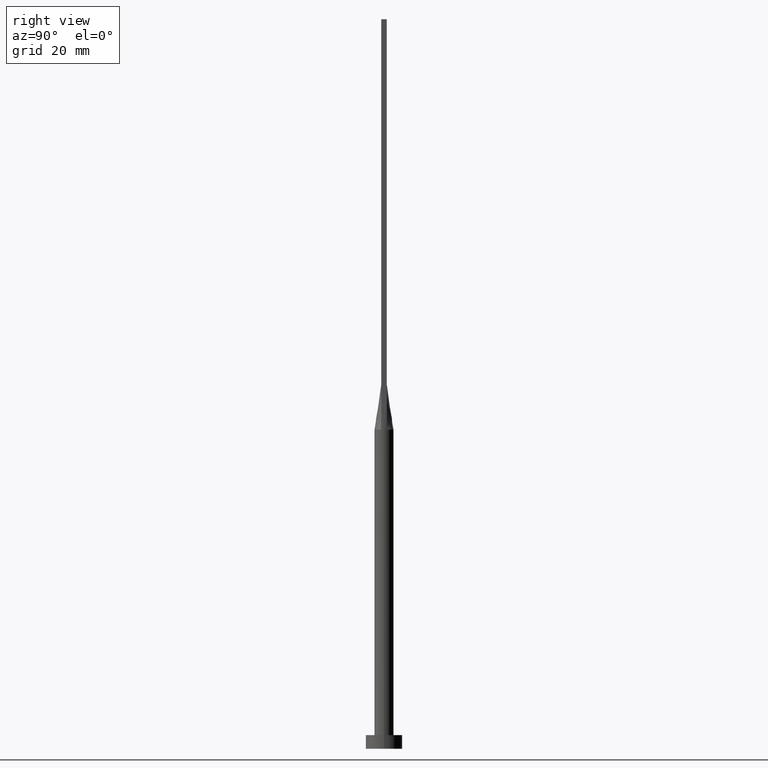
[diagram: clean part render]
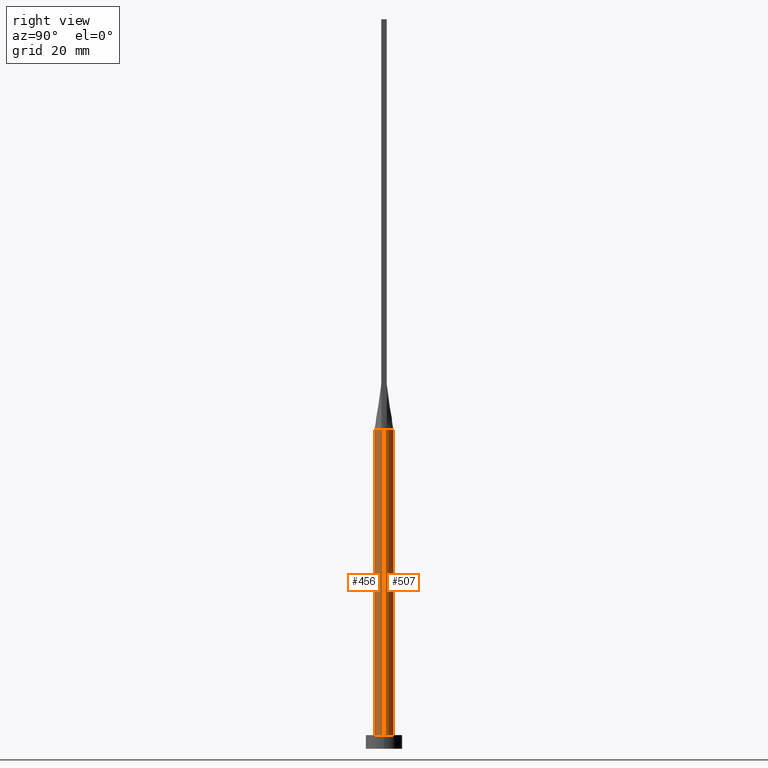
[diagram: same view with one multi-face feature highlighted, each face labeled with its STEP entity id]
A machine part, right view. The highlighted faces form ONE feature: a constant-radius fillet chain: 2 tangent blend faces with common blend radius 2.1 mm. The faces share edges in the B-rep.
Their STEP definitions:
[1] entity #507 (Cylinder):
#17 = DIRECTION ( 'NONE',  ( -0.000000000000000000, -0.000000000000000000, -1.000000000000000000 ) ) ;
#18 = AXIS2_PLACEMENT_3D ( 'NONE', #538, #173, #119 ) ;
#19 = CARTESIAN_POINT ( 'NONE',  ( 2.100000000000000089, 2.571758278209441957E-16, 3.000000000000000000 ) ) ;
#27 = FACE_OUTER_BOUND ( 'NONE', #175, .T. ) ;
#36 = ORIENTED_EDGE ( 'NONE', *, *, #110, .F. ) ;
#44 = VERTEX_POINT ( 'NONE', #240 ) ;
#49 = VERTEX_POINT ( 'NONE', #19 ) ;
#65 = DIRECTION ( 'NONE',  ( -0.000000000000000000, -0.000000000000000000, -1.000000000000000000 ) ) ;
#73 = CARTESIAN_POINT ( 'NONE',  ( -2.100000000000000089, -1.284268198382905442E-16, 70.00000000000000000 ) ) ;
#87 = EDGE_CURVE ( 'NONE', #49, #509, #284, .T. ) ;
#96 = VECTOR ( 'NONE', #65, 1000.000000000000000 ) ;
#100 = EDGE_CURVE ( 'NONE', #44, #278, #177, .T. ) ;
#110 = EDGE_CURVE ( 'NONE', #132, #509, #154, .T. ) ;
#111 = CARTESIAN_POINT ( 'NONE',  ( -0.5124799074986362557, 2.051574327850739454, 70.00000000000001421 ) ) ;
#114 = CARTESIAN_POINT ( 'NONE',  ( 1.667357759214464608, 1.291791096182927090, 70.00000000000001421 ) ) ;
#119 = DIRECTION ( 'NONE',  ( 1.000000000000000000, 0.000000000000000000, 0.000000000000000000 ) ) ;
#131 = AXIS2_PLACEMENT_3D ( 'NONE', #477, #544, #178 ) ;
#132 = VERTEX_POINT ( 'NONE', #73 ) ;
#150 = ORIENTED_EDGE ( 'NONE', *, *, #100, .F. ) ;
#152 = CARTESIAN_POINT ( 'NONE',  ( 2.100000000000000089, 3.372022381799045987E-17, 70.00000000000000000 ) ) ;
#154 = LINE ( 'NONE', #518, #96 ) ;
#157 = CARTESIAN_POINT ( 'NONE',  ( -2.100000000000000089, 0.000000000000000000, 3.000000000000000000 ) ) ;
#158 = DIRECTION ( 'NONE',  ( 0.000000000000000000, 0.000000000000000000, 1.000000000000000000 ) ) ;
#171 = EDGE_CURVE ( 'NONE', #340, #44, #361, .T. ) ;
#173 = DIRECTION ( 'NONE',  ( 0.000000000000000000, 0.000000000000000000, 1.000000000000000000 ) ) ;
#175 = EDGE_LOOP ( 'NONE', ( #300, #222, #329, #36, #303, #150 ) ) ;
#177 = B_SPLINE_CURVE_WITH_KNOTS ( 'NONE', 3,
 ( #282, #215, #525, #114, #515, #252, #378, #211, #530, #291, #111, #562, #467, #430, #322, #480, #394, #385 ),
 .UNSPECIFIED., .F., .F.,
 ( 4, 2, 2, 2, 2, 2, 2, 2, 4 ),
 ( 0.000000000000000000, 0.1249999999999999167, 0.2499999999999998890, 0.3749999999999998335, 0.4999999999999998890, 0.6249999999999998890, 0.7499999999999998890, 0.8750000000000000000, 1.000000000000000000 ),
 .UNSPECIFIED. ) ;
#178 = DIRECTION ( 'NONE',  ( -1.000000000000000000, 0.000000000000000000, 0.000000000000000000 ) ) ;
#211 = CARTESIAN_POINT ( 'NONE',  ( 0.5124799074986362557, 2.051574327850739454, 70.00000000000002842 ) ) ;
#213 = CIRCLE ( 'NONE', #232, 2.100000000000000089 ) ;
#215 = CARTESIAN_POINT ( 'NONE',  ( 1.952271707612931895, 0.7915068550356627597, 70.00000000000000000 ) ) ;
#222 = ORIENTED_EDGE ( 'NONE', *, *, #387, .T. ) ;
#232 = AXIS2_PLACEMENT_3D ( 'NONE', #468, #421, #432 ) ;
#240 = CARTESIAN_POINT ( 'NONE',  ( 2.002598039528881380, 0.6323997261616642884, 70.00000000000000000 ) ) ;
#248 = CARTESIAN_POINT ( 'NONE',  ( 0.000000000000000000, 0.000000000000000000, 3.000000000000000000 ) ) ;
#252 = CARTESIAN_POINT ( 'NONE',  ( 1.184262492297964098, 1.748903470433445628, 70.00000000000000000 ) ) ;
#278 = VERTEX_POINT ( 'NONE', #461 ) ;
#282 = CARTESIAN_POINT ( 'NONE',  ( 2.002598039528881380, 0.6323997261616642884, 70.00000000000000000 ) ) ;
#284 = CIRCLE ( 'NONE', #539, 2.100000000000000089 ) ;
#291 = CARTESIAN_POINT ( 'NONE',  ( -0.2565105576742073845, 2.100000000000000533, 70.00000000000001421 ) ) ;
#300 = ORIENTED_EDGE ( 'NONE', *, *, #171, .F. ) ;
#303 = ORIENTED_EDGE ( 'NONE', *, *, #443, .F. ) ;
#322 = CARTESIAN_POINT ( 'NONE',  ( -1.667357759214464830, 1.291791096182927534, 70.00000000000001421 ) ) ;
#324 = DIRECTION ( 'NONE',  ( 1.000000000000000000, 0.000000000000000000, 0.000000000000000000 ) ) ;
#329 = ORIENTED_EDGE ( 'NONE', *, *, #87, .T. ) ;
#340 = VERTEX_POINT ( 'NONE', #152 ) ;
#361 = CIRCLE ( 'NONE', #18, 2.100000000000000089 ) ;
#378 = CARTESIAN_POINT ( 'NONE',  ( 0.9765948449220478444, 1.875594675604967065, 70.00000000000000000 ) ) ;
#382 = LINE ( 'NONE', #425, #415 ) ;
#385 = CARTESIAN_POINT ( 'NONE',  ( -2.002622288503867587, 0.6324075186587619912, 70.00000000000000000 ) ) ;
#387 = EDGE_CURVE ( 'NONE', #340, #49, #382, .T. ) ;
#390 = CYLINDRICAL_SURFACE ( 'NONE', #131, 2.100000000000000089 ) ;
#394 = CARTESIAN_POINT ( 'NONE',  ( -1.952271707612931895, 0.7915068550356629817, 70.00000000000000000 ) ) ;
#415 = VECTOR ( 'NONE', #17, 1000.000000000000000 ) ;
#421 = DIRECTION ( 'NONE',  ( 0.000000000000000000, 0.000000000000000000, 1.000000000000000000 ) ) ;
#425 = CARTESIAN_POINT ( 'NONE',  ( 2.100000000000000089, 2.571758278209441957E-16, 70.00000000000000000 ) ) ;
#430 = CARTESIAN_POINT ( 'NONE',  ( -1.529462611013499451, 1.456669187245239527, 70.00000000000000000 ) ) ;
#432 = DIRECTION ( 'NONE',  ( 1.000000000000000000, 0.000000000000000000, 0.000000000000000000 ) ) ;
#443 = EDGE_CURVE ( 'NONE', #278, #132, #213, .T. ) ;
#461 = CARTESIAN_POINT ( 'NONE',  ( -2.002622288503867587, 0.6324075186587619912, 70.00000000000000000 ) ) ;
#467 = CARTESIAN_POINT ( 'NONE',  ( -1.184262492297963876, 1.748903470433446294, 70.00000000000001421 ) ) ;
#468 = CARTESIAN_POINT ( 'NONE',  ( 0.000000000000000000, 0.000000000000000000, 70.00000000000000000 ) ) ;
#477 = CARTESIAN_POINT ( 'NONE',  ( 0.000000000000000000, 0.000000000000000000, 70.00000000000000000 ) ) ;
#480 = CARTESIAN_POINT ( 'NONE',  ( -1.878511276496549032, 0.9591670956957809580, 70.00000000000001421 ) ) ;
#507 = ADVANCED_FACE ( 'NONE', ( #27 ), #390, .T. ) ;
#509 = VERTEX_POINT ( 'NONE', #157 ) ;
#515 = CARTESIAN_POINT ( 'NONE',  ( 1.529462611013499451, 1.456669187245239527, 70.00000000000000000 ) ) ;
#518 = CARTESIAN_POINT ( 'NONE',  ( -2.100000000000000089, 0.000000000000000000, 70.00000000000000000 ) ) ;
#525 = CARTESIAN_POINT ( 'NONE',  ( 1.878511276496548366, 0.9591670956957804028, 70.00000000000000000 ) ) ;
#530 = CARTESIAN_POINT ( 'NONE',  ( 0.2565105576742081062, 2.100000000000000533, 70.00000000000001421 ) ) ;
#538 = CARTESIAN_POINT ( 'NONE',  ( 0.000000000000000000, 0.000000000000000000, 70.00000000000000000 ) ) ;
#539 = AXIS2_PLACEMENT_3D ( 'NONE', #248, #158, #324 ) ;
#544 = DIRECTION ( 'NONE',  ( -0.000000000000000000, -0.000000000000000000, -1.000000000000000000 ) ) ;
#562 = CARTESIAN_POINT ( 'NONE',  ( -0.9765948449220482885, 1.875594675604967509, 70.00000000000001421 ) ) ;
[2] entity #456 (Cylinder):
#5 = AXIS2_PLACEMENT_3D ( 'NONE', #368, #105, #381 ) ;
#17 = DIRECTION ( 'NONE',  ( -0.000000000000000000, -0.000000000000000000, -1.000000000000000000 ) ) ;
#19 = CARTESIAN_POINT ( 'NONE',  ( 2.100000000000000089, 2.571758278209441957E-16, 3.000000000000000000 ) ) ;
#31 = CARTESIAN_POINT ( 'NONE',  ( 0.000000000000000000, 0.000000000000000000, 70.00000000000000000 ) ) ;
#32 = EDGE_CURVE ( 'NONE', #509, #49, #411, .T. ) ;
#48 = AXIS2_PLACEMENT_3D ( 'NONE', #133, #279, #53 ) ;
#49 = VERTEX_POINT ( 'NONE', #19 ) ;
#53 = DIRECTION ( 'NONE',  ( 1.000000000000000000, 0.000000000000000000, 0.000000000000000000 ) ) ;
#65 = DIRECTION ( 'NONE',  ( -0.000000000000000000, -0.000000000000000000, -1.000000000000000000 ) ) ;
#73 = CARTESIAN_POINT ( 'NONE',  ( -2.100000000000000089, -1.284268198382905442E-16, 70.00000000000000000 ) ) ;
#77 = CYLINDRICAL_SURFACE ( 'NONE', #330, 2.100000000000000089 ) ;
#81 = DIRECTION ( 'NONE',  ( 0.000000000000000000, 0.000000000000000000, 1.000000000000000000 ) ) ;
#96 = VECTOR ( 'NONE', #65, 1000.000000000000000 ) ;
#102 = CIRCLE ( 'NONE', #5, 2.100000000000000089 ) ;
#105 = DIRECTION ( 'NONE',  ( 0.000000000000000000, 0.000000000000000000, 1.000000000000000000 ) ) ;
#110 = EDGE_CURVE ( 'NONE', #132, #509, #154, .T. ) ;
#123 = ORIENTED_EDGE ( 'NONE', *, *, #220, .F. ) ;
#125 = ORIENTED_EDGE ( 'NONE', *, *, #387, .F. ) ;
#132 = VERTEX_POINT ( 'NONE', #73 ) ;
#133 = CARTESIAN_POINT ( 'NONE',  ( 0.000000000000000000, 0.000000000000000000, 3.000000000000000000 ) ) ;
#143 = ORIENTED_EDGE ( 'NONE', *, *, #110, .T. ) ;
#152 = CARTESIAN_POINT ( 'NONE',  ( 2.100000000000000089, 3.372022381799045987E-17, 70.00000000000000000 ) ) ;
#154 = LINE ( 'NONE', #518, #96 ) ;
#157 = CARTESIAN_POINT ( 'NONE',  ( -2.100000000000000089, 0.000000000000000000, 3.000000000000000000 ) ) ;
#160 = AXIS2_PLACEMENT_3D ( 'NONE', #485, #81, #259 ) ;
#212 = EDGE_CURVE ( 'NONE', #367, #340, #577, .T. ) ;
#220 = EDGE_CURVE ( 'NONE', #573, #367, #302, .T. ) ;
#231 = EDGE_LOOP ( 'NONE', ( #125, #490, #123, #341, #143, #336 ) ) ;
#259 = DIRECTION ( 'NONE',  ( 1.000000000000000000, -1.776356839400250465E-15, 0.000000000000000000 ) ) ;
#262 = DIRECTION ( 'NONE',  ( 0.000000000000000000, 0.000000000000000000, 1.000000000000000000 ) ) ;
#279 = DIRECTION ( 'NONE',  ( 0.000000000000000000, 0.000000000000000000, 1.000000000000000000 ) ) ;
#298 = CARTESIAN_POINT ( 'NONE',  ( 0.000000000000000000, 0.000000000000000000, 70.00000000000000000 ) ) ;
#302 = CIRCLE ( 'NONE', #355, 2.100000000000000089 ) ;
#330 = AXIS2_PLACEMENT_3D ( 'NONE', #31, #332, #439 ) ;
#332 = DIRECTION ( 'NONE',  ( -0.000000000000000000, -0.000000000000000000, -1.000000000000000000 ) ) ;
#336 = ORIENTED_EDGE ( 'NONE', *, *, #32, .T. ) ;
#340 = VERTEX_POINT ( 'NONE', #152 ) ;
#341 = ORIENTED_EDGE ( 'NONE', *, *, #412, .F. ) ;
#355 = AXIS2_PLACEMENT_3D ( 'NONE', #298, #262, #359 ) ;
#359 = DIRECTION ( 'NONE',  ( 1.000000000000000000, 0.000000000000000000, 0.000000000000000000 ) ) ;
#367 = VERTEX_POINT ( 'NONE', #465 ) ;
#368 = CARTESIAN_POINT ( 'NONE',  ( 0.000000000000000000, 0.000000000000000000, 70.00000000000000000 ) ) ;
#381 = DIRECTION ( 'NONE',  ( 1.000000000000000000, 0.000000000000000000, 0.000000000000000000 ) ) ;
#382 = LINE ( 'NONE', #425, #415 ) ;
#387 = EDGE_CURVE ( 'NONE', #340, #49, #382, .T. ) ;
#411 = CIRCLE ( 'NONE', #48, 2.100000000000000089 ) ;
#412 = EDGE_CURVE ( 'NONE', #132, #573, #102, .T. ) ;
#415 = VECTOR ( 'NONE', #17, 1000.000000000000000 ) ;
#425 = CARTESIAN_POINT ( 'NONE',  ( 2.100000000000000089, 2.571758278209441957E-16, 70.00000000000000000 ) ) ;
#439 = DIRECTION ( 'NONE',  ( -1.000000000000000000, 0.000000000000000000, 0.000000000000000000 ) ) ;
#456 = ADVANCED_FACE ( 'NONE', ( #506 ), #77, .T. ) ;
#465 = CARTESIAN_POINT ( 'NONE',  ( 2.002626276893244128, -0.6324088233005202841, 70.00000000000000000 ) ) ;
#485 = CARTESIAN_POINT ( 'NONE',  ( 0.000000000000000000, 0.000000000000000000, 70.00000000000000000 ) ) ;
#490 = ORIENTED_EDGE ( 'NONE', *, *, #212, .F. ) ;
#506 = FACE_OUTER_BOUND ( 'NONE', #231, .T. ) ;
#509 = VERTEX_POINT ( 'NONE', #157 ) ;
#518 = CARTESIAN_POINT ( 'NONE',  ( -2.100000000000000089, 0.000000000000000000, 70.00000000000000000 ) ) ;
#540 = CARTESIAN_POINT ( 'NONE',  ( -2.002601997802567535, -0.6324010168594718095, 70.00000000000000000 ) ) ;
#573 = VERTEX_POINT ( 'NONE', #540 ) ;
#577 = CIRCLE ( 'NONE', #160, 2.100000000000000089 ) ;